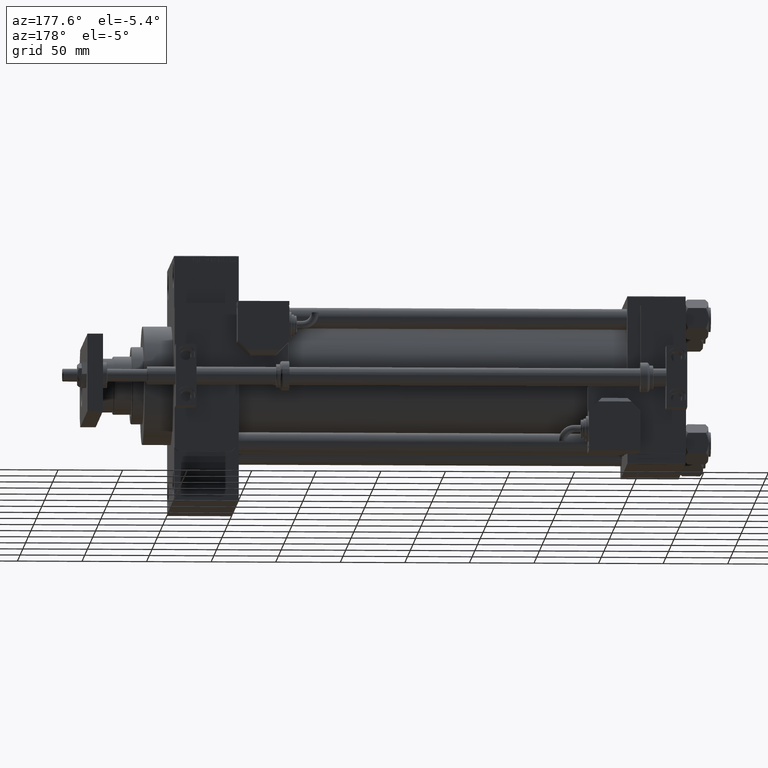
[diagram: clean part render]
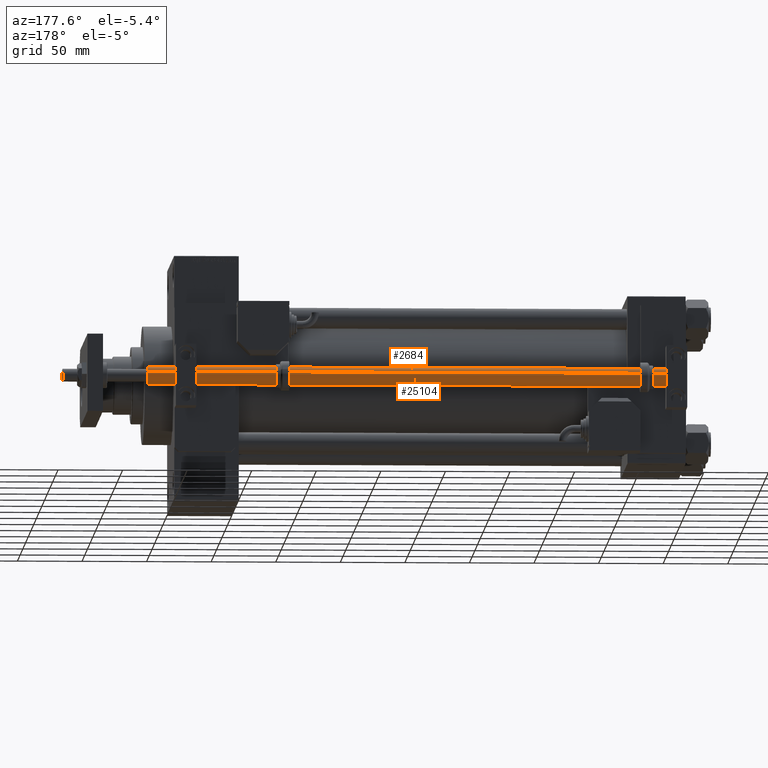
[diagram: same view with one multi-face feature highlighted, each face labeled with its STEP entity id]
A machine part, auxiliary view. The highlighted faces form ONE feature: a constant-radius fillet chain: 2 tangent blend faces with common blend radius 7 mm. The faces share edges in the B-rep.
Their STEP definitions:
[1] entity #25104 (Cylinder):
#1844 = DIRECTION ( 'NONE',  ( 0.000000000000000000, 0.000000000000000000, 1.000000000000000000 ) ) ;
#2816 = DIRECTION ( 'NONE',  ( -0.000000000000000000, -0.000000000000000000, -1.000000000000000000 ) ) ;
#4644 = DIRECTION ( 'NONE',  ( -0.000000000000000000, -0.000000000000000000, 1.000000000000000000 ) ) ;
#5180 = CARTESIAN_POINT ( 'NONE',  ( 0.000000000000000000, 0.000000000000000000, 0.3000000000000224709 ) ) ;
#7997 = VERTEX_POINT ( 'NONE', #32427 ) ;
#8879 = CARTESIAN_POINT ( 'NONE',  ( -7.000000000000000000, 0.000000000000000000, 418.0000000000000000 ) ) ;
#9095 = ORIENTED_EDGE ( 'NONE', *, *, #42754, .F. ) ;
#9702 = DIRECTION ( 'NONE',  ( -0.000000000000000000, -0.000000000000000000, -1.000000000000000000 ) ) ;
#10520 = AXIS2_PLACEMENT_3D ( 'NONE', #50798, #21068, #12365 ) ;
#11118 = CARTESIAN_POINT ( 'NONE',  ( 0.000000000000000000, 0.000000000000000000, 418.0000000000000000 ) ) ;
#11697 = VERTEX_POINT ( 'NONE', #39708 ) ;
#12365 = DIRECTION ( 'NONE',  ( -1.000000000000000000, 0.000000000000000000, 0.000000000000000000 ) ) ;
#14581 = CARTESIAN_POINT ( 'NONE',  ( 7.000000000000000000, 8.572527594031473190E-16, 0.3000000000000224709 ) ) ;
#14650 = VERTEX_POINT ( 'NONE', #14581 ) ;
#16212 = VECTOR ( 'NONE', #2816, 1000.000000000000000 ) ;
#18500 = ORIENTED_EDGE ( 'NONE', *, *, #50919, .F. ) ;
#18592 = AXIS2_PLACEMENT_3D ( 'NONE', #11118, #1844, #24322 ) ;
#21068 = DIRECTION ( 'NONE',  ( -0.000000000000000000, -0.000000000000000000, -1.000000000000000000 ) ) ;
#21352 = FACE_OUTER_BOUND ( 'NONE', #41220, .T. ) ;
#23130 = ORIENTED_EDGE ( 'NONE', *, *, #31010, .T. ) ;
#23962 = VERTEX_POINT ( 'NONE', #49396 ) ;
#24322 = DIRECTION ( 'NONE',  ( 1.000000000000000000, 0.000000000000000000, 0.000000000000000000 ) ) ;
#24788 = EDGE_CURVE ( 'NONE', #14650, #7997, #24891, .T. ) ;
#24891 = CIRCLE ( 'NONE', #45477, 7.000000000000000000 ) ;
#25104 = ADVANCED_FACE ( 'NONE', ( #21352 ), #33713, .T. ) ;
#27921 = VECTOR ( 'NONE', #9702, 1000.000000000000000 ) ;
#31010 = EDGE_CURVE ( 'NONE', #11697, #14650, #37613, .T. ) ;
#32054 = ORIENTED_EDGE ( 'NONE', *, *, #24788, .T. ) ;
#32427 = CARTESIAN_POINT ( 'NONE',  ( -7.000000000000000000, 0.000000000000000000, 0.3000000000000224709 ) ) ;
#33713 = CYLINDRICAL_SURFACE ( 'NONE', #10520, 7.000000000000000000 ) ;
#37613 = LINE ( 'NONE', #45462, #16212 ) ;
#39708 = CARTESIAN_POINT ( 'NONE',  ( 7.000000000000000000, 8.572527594031473190E-16, 418.0000000000000000 ) ) ;
#41220 = EDGE_LOOP ( 'NONE', ( #9095, #23130, #32054, #18500 ) ) ;
#42754 = EDGE_CURVE ( 'NONE', #11697, #23962, #55364, .T. ) ;
#43365 = DIRECTION ( 'NONE',  ( 1.000000000000000000, 0.000000000000000000, 0.000000000000000000 ) ) ;
#44183 = LINE ( 'NONE', #8879, #27921 ) ;
#45462 = CARTESIAN_POINT ( 'NONE',  ( 7.000000000000000000, 8.572527594031473190E-16, 418.0000000000000000 ) ) ;
#45477 = AXIS2_PLACEMENT_3D ( 'NONE', #5180, #4644, #43365 ) ;
#49396 = CARTESIAN_POINT ( 'NONE',  ( -7.000000000000000000, 0.000000000000000000, 418.0000000000000000 ) ) ;
#50798 = CARTESIAN_POINT ( 'NONE',  ( 0.000000000000000000, 0.000000000000000000, 418.0000000000000000 ) ) ;
#50919 = EDGE_CURVE ( 'NONE', #23962, #7997, #44183, .T. ) ;
#55364 = CIRCLE ( 'NONE', #18592, 7.000000000000000000 ) ;
[2] entity #2684 (Cylinder):
#482 = AXIS2_PLACEMENT_3D ( 'NONE', #18138, #52355, #13913 ) ;
#2684 = ADVANCED_FACE ( 'NONE', ( #44211 ), #31323, .T. ) ;
#2816 = DIRECTION ( 'NONE',  ( -0.000000000000000000, -0.000000000000000000, -1.000000000000000000 ) ) ;
#3994 = EDGE_CURVE ( 'NONE', #7997, #14650, #49832, .T. ) ;
#4961 = CARTESIAN_POINT ( 'NONE',  ( 0.000000000000000000, 0.000000000000000000, 418.0000000000000000 ) ) ;
#7997 = VERTEX_POINT ( 'NONE', #32427 ) ;
#8879 = CARTESIAN_POINT ( 'NONE',  ( -7.000000000000000000, 0.000000000000000000, 418.0000000000000000 ) ) ;
#9702 = DIRECTION ( 'NONE',  ( -0.000000000000000000, -0.000000000000000000, -1.000000000000000000 ) ) ;
#11697 = VERTEX_POINT ( 'NONE', #39708 ) ;
#13913 = DIRECTION ( 'NONE',  ( -1.000000000000000000, 0.000000000000000000, 0.000000000000000000 ) ) ;
#14281 = ORIENTED_EDGE ( 'NONE', *, *, #23168, .F. ) ;
#14581 = CARTESIAN_POINT ( 'NONE',  ( 7.000000000000000000, 8.572527594031473190E-16, 0.3000000000000224709 ) ) ;
#14650 = VERTEX_POINT ( 'NONE', #14581 ) ;
#16212 = VECTOR ( 'NONE', #2816, 1000.000000000000000 ) ;
#17048 = DIRECTION ( 'NONE',  ( 0.000000000000000000, 0.000000000000000000, 1.000000000000000000 ) ) ;
#18138 = CARTESIAN_POINT ( 'NONE',  ( 0.000000000000000000, 0.000000000000000000, 418.0000000000000000 ) ) ;
#18436 = AXIS2_PLACEMENT_3D ( 'NONE', #30661, #47482, #39339 ) ;
#23168 = EDGE_CURVE ( 'NONE', #23962, #11697, #48212, .T. ) ;
#23962 = VERTEX_POINT ( 'NONE', #49396 ) ;
#27921 = VECTOR ( 'NONE', #9702, 1000.000000000000000 ) ;
#29604 = EDGE_LOOP ( 'NONE', ( #41249, #14281, #45475, #46115 ) ) ;
#30661 = CARTESIAN_POINT ( 'NONE',  ( 0.000000000000000000, 0.000000000000000000, 0.3000000000000224709 ) ) ;
#31010 = EDGE_CURVE ( 'NONE', #11697, #14650, #37613, .T. ) ;
#31323 = CYLINDRICAL_SURFACE ( 'NONE', #482, 7.000000000000000000 ) ;
#32427 = CARTESIAN_POINT ( 'NONE',  ( -7.000000000000000000, 0.000000000000000000, 0.3000000000000224709 ) ) ;
#37613 = LINE ( 'NONE', #45462, #16212 ) ;
#39339 = DIRECTION ( 'NONE',  ( 1.000000000000000000, 0.000000000000000000, 0.000000000000000000 ) ) ;
#39708 = CARTESIAN_POINT ( 'NONE',  ( 7.000000000000000000, 8.572527594031473190E-16, 418.0000000000000000 ) ) ;
#41249 = ORIENTED_EDGE ( 'NONE', *, *, #31010, .F. ) ;
#42865 = DIRECTION ( 'NONE',  ( 1.000000000000000000, 0.000000000000000000, 0.000000000000000000 ) ) ;
#44183 = LINE ( 'NONE', #8879, #27921 ) ;
#44211 = FACE_OUTER_BOUND ( 'NONE', #29604, .T. ) ;
#45462 = CARTESIAN_POINT ( 'NONE',  ( 7.000000000000000000, 8.572527594031473190E-16, 418.0000000000000000 ) ) ;
#45475 = ORIENTED_EDGE ( 'NONE', *, *, #50919, .T. ) ;
#46115 = ORIENTED_EDGE ( 'NONE', *, *, #3994, .T. ) ;
#47482 = DIRECTION ( 'NONE',  ( -0.000000000000000000, -0.000000000000000000, 1.000000000000000000 ) ) ;
#48212 = CIRCLE ( 'NONE', #51835, 7.000000000000000000 ) ;
#49396 = CARTESIAN_POINT ( 'NONE',  ( -7.000000000000000000, 0.000000000000000000, 418.0000000000000000 ) ) ;
#49832 = CIRCLE ( 'NONE', #18436, 7.000000000000000000 ) ;
#50919 = EDGE_CURVE ( 'NONE', #23962, #7997, #44183, .T. ) ;
#51835 = AXIS2_PLACEMENT_3D ( 'NONE', #4961, #17048, #42865 ) ;
#52355 = DIRECTION ( 'NONE',  ( -0.000000000000000000, -0.000000000000000000, -1.000000000000000000 ) ) ;